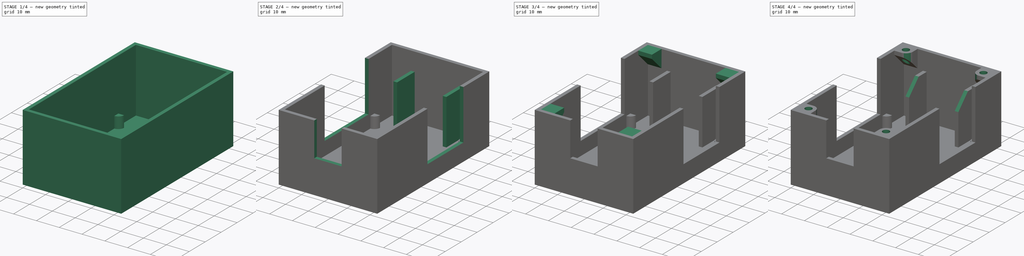
[diagram: build sequence overview — one tinted view per stage of 4, left to right]
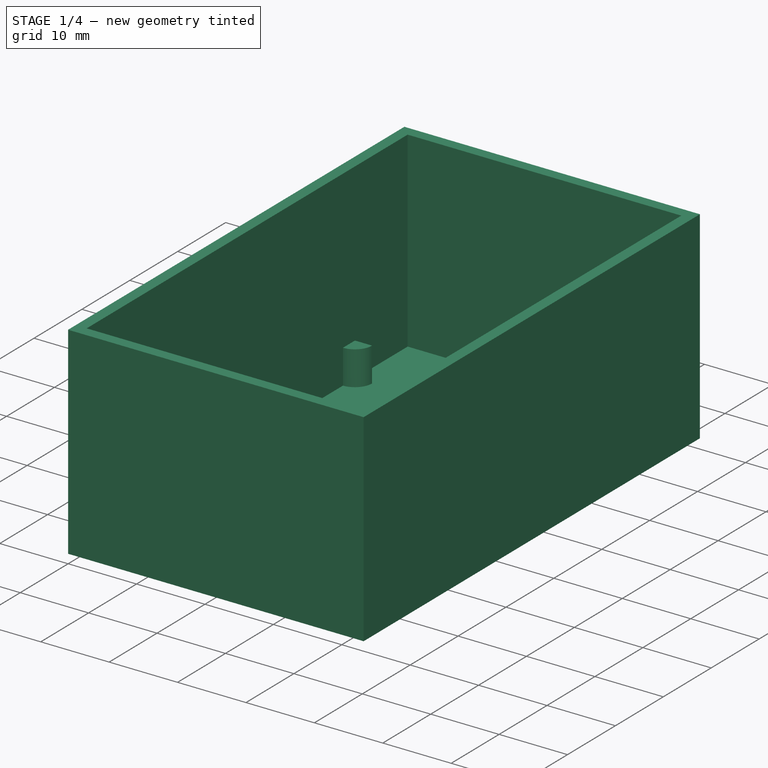
[diagram: stage 1 of 4 — iso view after this stage's code; geometry added in this stage tinted green]
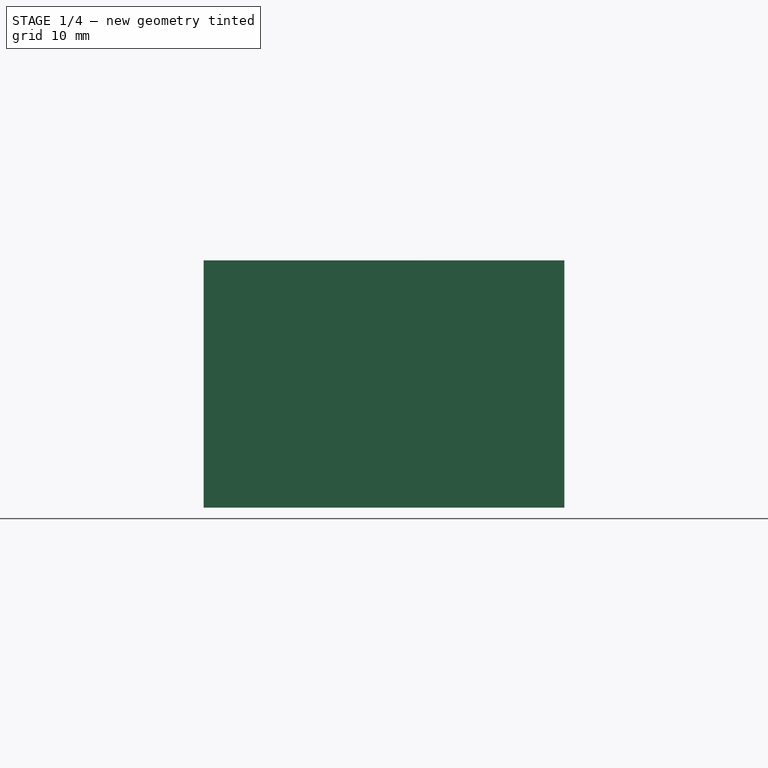
[diagram: stage 1 of 4 — front view after this stage's code; geometry added in this stage tinted green]
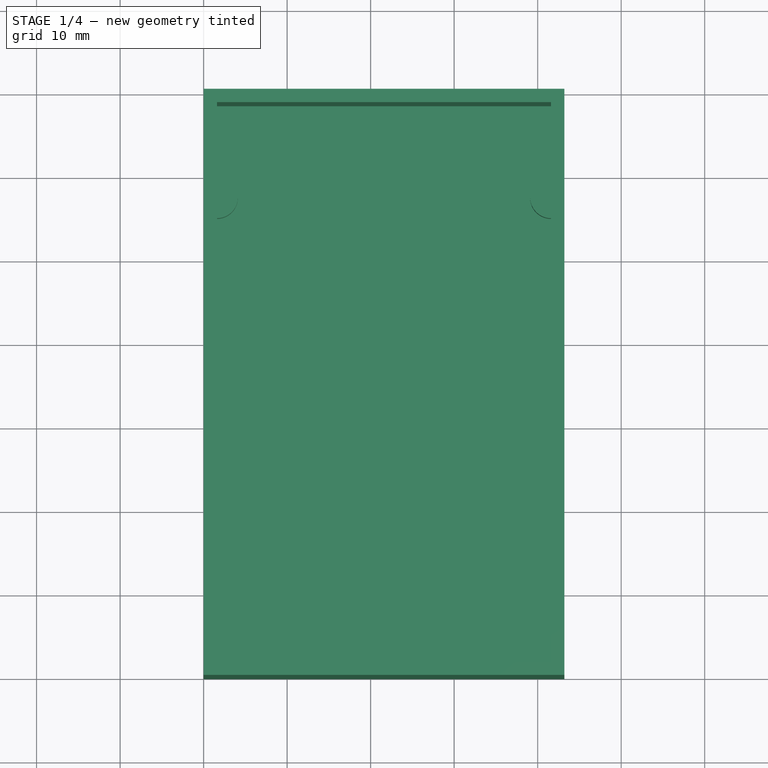
[diagram: stage 1 of 4 — top view after this stage's code; geometry added in this stage tinted green]
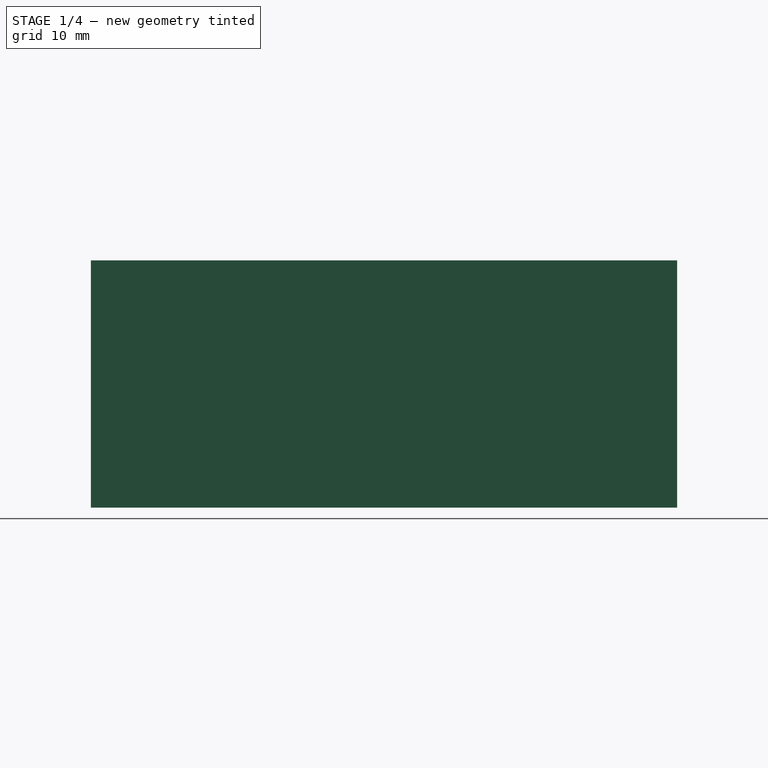
[diagram: stage 1 of 4 — right view after this stage's code; geometry added in this stage tinted green]
FCSTD DOCUMENT  (FreeCAD 0.19R)
Label: case_bottom
License: All rights reserved
LicenseURL: http://en.wikipedia.org/wiki/All_rights_reserved
objects: Sketcher::SketchObject×8, PartDesign::Pad×5, PartDesign::Pocket×3, PartDesign::Chamfer×2, PartDesign::Fillet×1, PartDesign::Body×1
note: 31 computed .brp shape members not serialized (recipe doc carries the construction recipe); baked Part::Feature solids carry a one-line shape summary decoded from their .brp

FEATURE [Sketcher::SketchObject] Sketch
  FullyConstrained = true
  MapMode = 5
  Support = -> [XY_Plane]
  sketch-geometry (4):
    g0: LineSegment StartX=0 StartY=0 StartZ=0 EndX=43.2 EndY=0 EndZ=0
    g1: LineSegment StartX=43.2 StartY=0 StartZ=0 EndX=43.2 EndY=70.2 EndZ=0
    g2: LineSegment StartX=43.2 StartY=70.2 StartZ=0 EndX=0 EndY=70.2 EndZ=0
    g3: LineSegment StartX=0 StartY=70.2 StartZ=0 EndX=0 EndY=0 EndZ=0
  constraints (11):
    c: Coincident(g0,g1)
    c: Coincident(g1,g2)
    c: Coincident(g2,g3)
    c: Coincident(g3,g0)
    c: Horizontal(g0)
    c: Horizontal(g2)
    c: Vertical(g1)
    c: Vertical(g3)
    c: Coincident(g0,g-1)
    c: DistanceX(g0,g0) = 43.2
    c: DistanceY(g1,g1) = 70.2
FEATURE [PartDesign::Pad] Pad
  Direction = (1,1,1)
  Length = 1.6
  Length2 = 100
  Profile = -> Sketch
  Type = 0
FEATURE [Sketcher::SketchObject] Sketch001
  FullyConstrained = true
  MapMode = 5
  Placement = pos=(0,0,1.6) rot=(0,0,1;0rad)
  Support = -> [Pad]
  sketch-geometry (8):
    g0: LineSegment StartX=0 StartY=0 StartZ=0 EndX=43.2 EndY=0 EndZ=0
    g1: LineSegment StartX=43.2 StartY=0 StartZ=0 EndX=43.2 EndY=70.2 EndZ=0
    g2: LineSegment StartX=43.2 StartY=70.2 StartZ=0 EndX=0 EndY=70.2 EndZ=0
    g3: LineSegment StartX=0 StartY=70.2 StartZ=0 EndX=0 EndY=0 EndZ=0
    g4: LineSegment StartX=1.6 StartY=1.6 StartZ=0 EndX=41.6 EndY=1.6 EndZ=0
    g5: LineSegment StartX=41.6 StartY=1.6 StartZ=0 EndX=41.6 EndY=68.6 EndZ=0
    g6: LineSegment StartX=41.6 StartY=68.6 StartZ=0 EndX=1.6 EndY=68.6 EndZ=0
    g7: LineSegment StartX=1.6 StartY=68.6 StartZ=0 EndX=1.6 EndY=1.6 EndZ=0
  constraints (23):
    c: Coincident(g0,g1)
    c: Coincident(g1,g2)
    c: Coincident(g2,g3)
    c: Coincident(g3,g0)
    c: Horizontal(g0)
    c: Horizontal(g2)
    c: Vertical(g1)
    c: Vertical(g3)
    c: Coincident(g0,g-1)
    c: Coincident(g4,g5)
    c: Coincident(g5,g6)
    c: Coincident(g6,g7)
    c: Coincident(g7,g4)
    c: Horizontal(g4)
    c: Horizontal(g6)
    c: Vertical(g5)
    c: Vertical(g7)
    c: DistanceX(g4,g4) = 40
    c: DistanceY(g5,g5) = 67
    c: DistanceX(g0,g0) = 43.2
    c: DistanceY(g3,g3) = 70.2
    c: DistanceX(g0,g4) = 1.6
    c: DistanceY(g0,g4) = 1.6
FEATURE [PartDesign::Pad] Pad001
  BaseFeature = -> Pad
  Direction = (1,1,1)
  Length = 28
  Length2 = 100
  Profile = -> Sketch001
  Type = 0
FEATURE [Sketcher::SketchObject] Sketch002
  FullyConstrained = true
  MapMode = 5
  Placement = pos=(0,0,1.6) rot=(0,0,1;0rad)
  Support = -> [Pad001]
  sketch-geometry (12):
    g0: ArcOfCircle CenterX=1.6 CenterY=1.6 CenterZ=0 NormalX=0 NormalY=0 NormalZ=1 AngleXU=0 Radius=2.5 StartAngle=0 EndAngle=1.5708
    g1: ArcOfCircle CenterX=41.6 CenterY=1.6 CenterZ=0 NormalX=0 NormalY=0 NormalZ=1 AngleXU=0 Radius=2.5 StartAngle=1.5708 EndAngle=3.14159
    g2: ArcOfCircle CenterX=1.6 CenterY=57.6 CenterZ=0 NormalX=0 NormalY=0 NormalZ=1 AngleXU=0 Radius=2.5 StartAngle=4.71239 EndAngle=6.28319
    g3: ArcOfCircle CenterX=41.6 CenterY=57.6 CenterZ=0 NormalX=0 NormalY=0 NormalZ=1 AngleXU=0 Radius=2.5 StartAngle=3.14159 EndAngle=4.71239
    g4: LineSegment StartX=4.1 StartY=57.6 StartZ=0 EndX=1.6 EndY=57.6 EndZ=0
    g5: LineSegment StartX=1.6 StartY=55.1 StartZ=0 EndX=1.6 EndY=57.6 EndZ=0
    g6: LineSegment StartX=39.1 StartY=57.6 StartZ=0 EndX=41.6 EndY=57.6 EndZ=0
    g7: LineSegment StartX=41.6 StartY=55.1 StartZ=0 EndX=41.6 EndY=57.6 EndZ=0
    g8: LineSegment StartX=41.6 StartY=4.1 StartZ=0 EndX=41.6 EndY=1.6 EndZ=0
    g9: LineSegment StartX=41.6 StartY=1.6 StartZ=0 EndX=39.1 EndY=1.6 EndZ=0
    g10: LineSegment StartX=4.1 StartY=1.6 StartZ=0 EndX=1.6 EndY=1.6 EndZ=0
    g11: LineSegment StartX=1.6 StartY=4.1 StartZ=0 EndX=1.6 EndY=1.6 EndZ=0
  constraints (36):
    c: DistanceX(g-1,g0) = 1.6
    c: DistanceY(g-1,g0) = 1.6
    c: DistanceX(g0,g1) = 40
    c: DistanceY(g0,g2) = 56
    c: DistanceY(g3,g2) = 0
    c: DistanceX(g0,g2) = 0
    c: DistanceY(g1,g0) = 0
    c: DistanceX(g3,g1) = 0
    c: Equal(g0,g1)
    c: Equal(g1,g3)
    c: Equal(g3,g2)
    c: Diameter(g1) = 5
    c: Coincident(g4,g2)
    c: Coincident(g4,g2)
    c: Coincident(g5,g2)
    c: Coincident(g5,g2)
    c: Coincident(g6,g3)
    c: Coincident(g6,g3)
    c: Coincident(g7,g3)
    c: Coincident(g7,g3)
    c: Coincident(g8,g1)
    c: Coincident(g8,g1)
    c: Coincident(g9,g1)
    c: Coincident(g9,g1)
    c: Horizontal(g9)
    c: Coincident(g10,g0)
    c: Coincident(g10,g0)
    c: Horizontal(g10)
    c: Coincident(g11,g0)
    c: Coincident(g11,g0)
    c: Vertical(g11)
    c: Vertical(g8)
    c: Horizontal(g4)
    c: Horizontal(g6)
    c: Vertical(g7)
    c: Vertical(g5)
FEATURE [PartDesign::Pad] Pad002
  BaseFeature = -> Pad001
  Direction = (1,1,1)
  Length = 5
  Length2 = 100
  Profile = -> Sketch002
  Type = 0
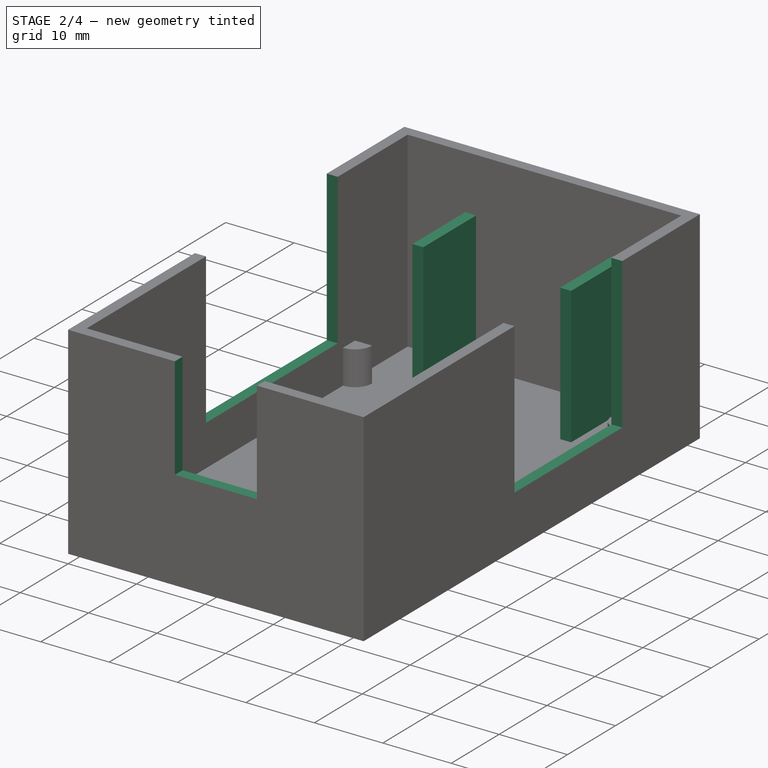
[diagram: stage 2 of 4 — iso view after this stage's code; geometry added in this stage tinted green]
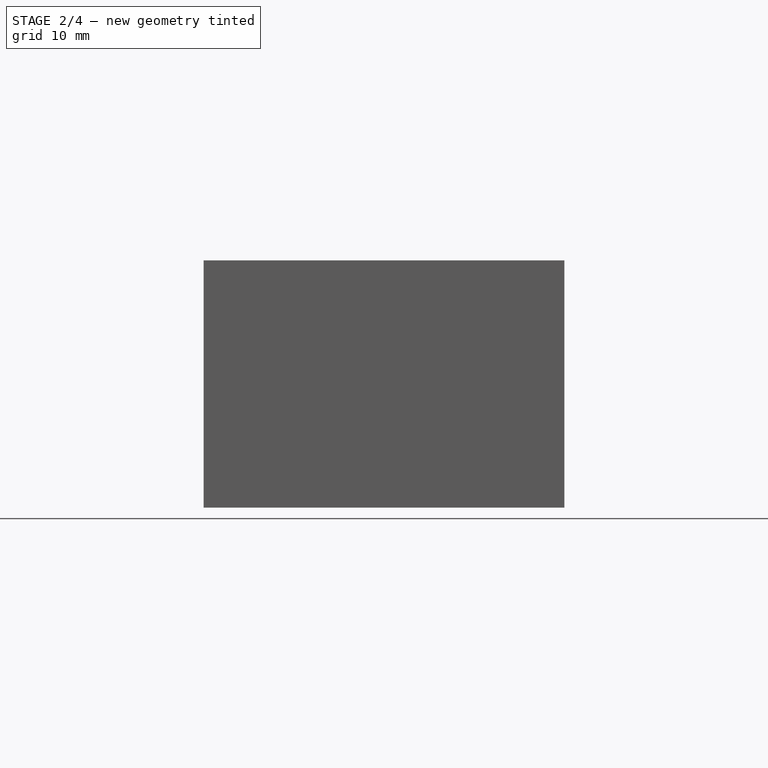
[diagram: stage 2 of 4 — front view after this stage's code; geometry added in this stage tinted green]
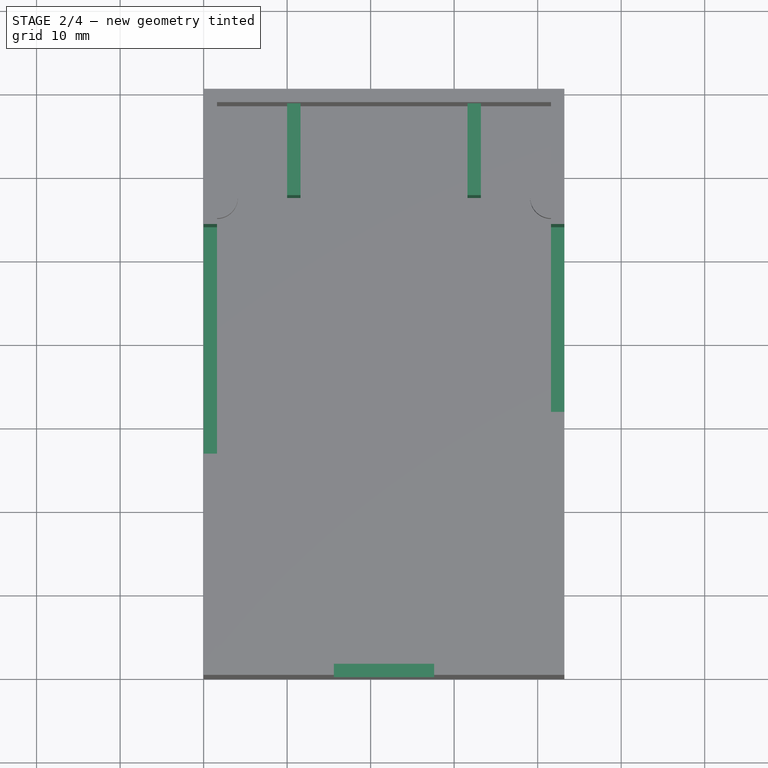
[diagram: stage 2 of 4 — top view after this stage's code; geometry added in this stage tinted green]
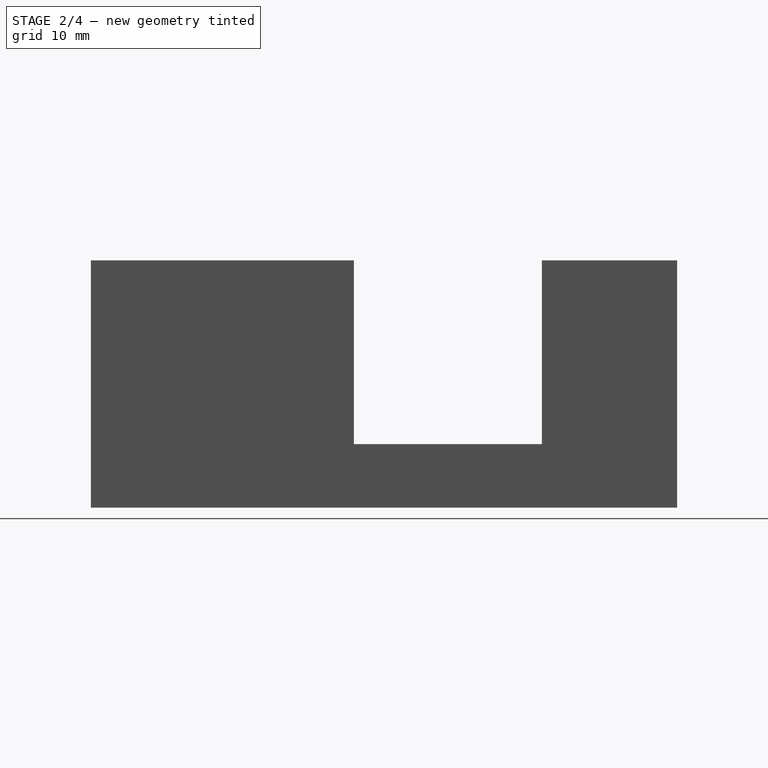
[diagram: stage 2 of 4 — right view after this stage's code; geometry added in this stage tinted green]
FEATURE [Sketcher::SketchObject] Sketch003
  FullyConstrained = true
  MapMode = 5
  Placement = pos=(0,0,29.6) rot=(0,0,1;0rad)
  Support = -> [Pad002]
  sketch-geometry (8):
    g0: LineSegment StartX=0 StartY=54 StartZ=0 EndX=1.6 EndY=54 EndZ=0
    g1: LineSegment StartX=1.6 StartY=54 StartZ=0 EndX=1.6 EndY=26.5 EndZ=0
    g2: LineSegment StartX=1.6 StartY=26.5 StartZ=0 EndX=0 EndY=26.5 EndZ=0
    g3: LineSegment StartX=0 StartY=26.5 StartZ=0 EndX=0 EndY=54 EndZ=0
    g4: LineSegment StartX=41.6 StartY=54 StartZ=0 EndX=43.2 EndY=54 EndZ=0
    g5: LineSegment StartX=43.2 StartY=54 StartZ=0 EndX=43.2 EndY=31.5 EndZ=0
    g6: LineSegment StartX=43.2 StartY=31.5 StartZ=0 EndX=41.6 EndY=31.5 EndZ=0
    g7: LineSegment StartX=41.6 StartY=31.5 StartZ=0 EndX=41.6 EndY=54 EndZ=0
  constraints (24):
    c: Coincident(g0,g1)
    c: Coincident(g1,g2)
    c: Coincident(g2,g3)
    c: Coincident(g3,g0)
    c: Horizontal(g0)
    c: Horizontal(g2)
    c: Vertical(g1)
    c: Vertical(g3)
    c: PointOnObject(g0,g-2)
    c: Coincident(g4,g5)
    c: Coincident(g5,g6)
    c: Coincident(g6,g7)
    c: Coincident(g7,g4)
    c: Horizontal(g4)
    c: Horizontal(g6)
    c: Vertical(g5)
    c: Vertical(g7)
    c: DistanceY(g-1,g0) = 54
    c: DistanceY(g-1,g2) = 26.5
    c: DistanceX(g2,g2) = 1.6
    c: DistanceY(g4) = 54
    c: DistanceX(g-1,g4) = 43.2
    c: Equal(g0,g4)
    c: DistanceY(g-1,g5) = 31.5
FEATURE [PartDesign::Pocket] Pocket
  BaseFeature = -> Pad002
  Length = 22
  Length2 = 100
  Profile = -> Sketch003
  Type = 0
FEATURE [Sketcher::SketchObject] Sketch004
  FullyConstrained = true
  MapMode = 5
  Placement = pos=(0,0,1.6) rot=(0,0,1;0rad)
  Support = -> [Pocket]
  sketch-geometry (8):
    g0: LineSegment StartX=10 StartY=68.6 StartZ=0 EndX=11.6 EndY=68.6 EndZ=0
    g1: LineSegment StartX=11.6 StartY=68.6 StartZ=0 EndX=11.6 EndY=57.6 EndZ=0
    g2: LineSegment StartX=11.6 StartY=57.6 StartZ=0 EndX=10 EndY=57.6 EndZ=0
    g3: LineSegment StartX=10 StartY=57.6 StartZ=0 EndX=10 EndY=68.6 EndZ=0
    g4: LineSegment StartX=31.6 StartY=68.6 StartZ=0 EndX=33.2 EndY=68.6 EndZ=0
    g5: LineSegment StartX=33.2 StartY=68.6 StartZ=0 EndX=33.2 EndY=57.6 EndZ=0
    g6: LineSegment StartX=33.2 StartY=57.6 StartZ=0 EndX=31.6 EndY=57.6 EndZ=0
    g7: LineSegment StartX=31.6 StartY=57.6 StartZ=0 EndX=31.6 EndY=68.6 EndZ=0
  constraints (24):
    c: Coincident(g0,g1)
    c: Coincident(g1,g2)
    c: Coincident(g2,g3)
    c: Coincident(g3,g0)
    c: Horizontal(g0)
    c: Horizontal(g2)
    c: Vertical(g1)
    c: Vertical(g3)
    c: Coincident(g4,g5)
    c: Coincident(g5,g6)
    c: Coincident(g6,g7)
    c: Coincident(g7,g4)
    c: Horizontal(g4)
    c: Horizontal(g6)
    c: Vertical(g5)
    c: Vertical(g7)
    c: DistanceX(g2,g2) = 1.6
    c: Equal(g2,g6)
    c: DistanceX(g0,g4) = 20
    c: DistanceY(g-1,g0) = 68.6
    c: DistanceY(g4,g0) = 0
    c: DistanceX(g-1,g0) = 10
    c: DistanceY(g3,g3) = 11
    c: Equal(g7,g3)
FEATURE [PartDesign::Pad] Pad003
  BaseFeature = -> Pocket
  Direction = (1,1,1)
  Length = 20
  Length2 = 100
  Profile = -> Sketch004
  Type = 0
FEATURE [Sketcher::SketchObject] Sketch005
  FullyConstrained = true
  MapMode = 5
  Placement = pos=(0,0,29.6) rot=(0,0,1;0rad)
  Support = -> [Pad003]
  sketch-geometry (4):
    g0: LineSegment StartX=15.6 StartY=1.6 StartZ=0 EndX=27.6 EndY=1.6 EndZ=0
    g1: LineSegment StartX=27.6 StartY=1.6 StartZ=0 EndX=27.6 EndY=0 EndZ=0
    g2: LineSegment StartX=27.6 StartY=0 StartZ=0 EndX=15.6 EndY=0 EndZ=0
    g3: LineSegment StartX=15.6 StartY=0 StartZ=0 EndX=15.6 EndY=1.6 EndZ=0
  constraints (12):
    c: Coincident(g0,g1)
    c: Coincident(g1,g2)
    c: Coincident(g2,g3)
    c: Coincident(g3,g0)
    c: Horizontal(g0)
    c: Horizontal(g2)
    c: Vertical(g1)
    c: Vertical(g3)
    c: PointOnObject(g1,g-1)
    c: DistanceX(g0,g0) = 12
    c: DistanceY(g1,g1) = 1.6
    c: DistanceX(g-1,g2) = 15.6
FEATURE [PartDesign::Pocket] Pocket001
  BaseFeature = -> Pad003
  Length = 15
  Length2 = 100
  Profile = -> Sketch005
  Type = 0
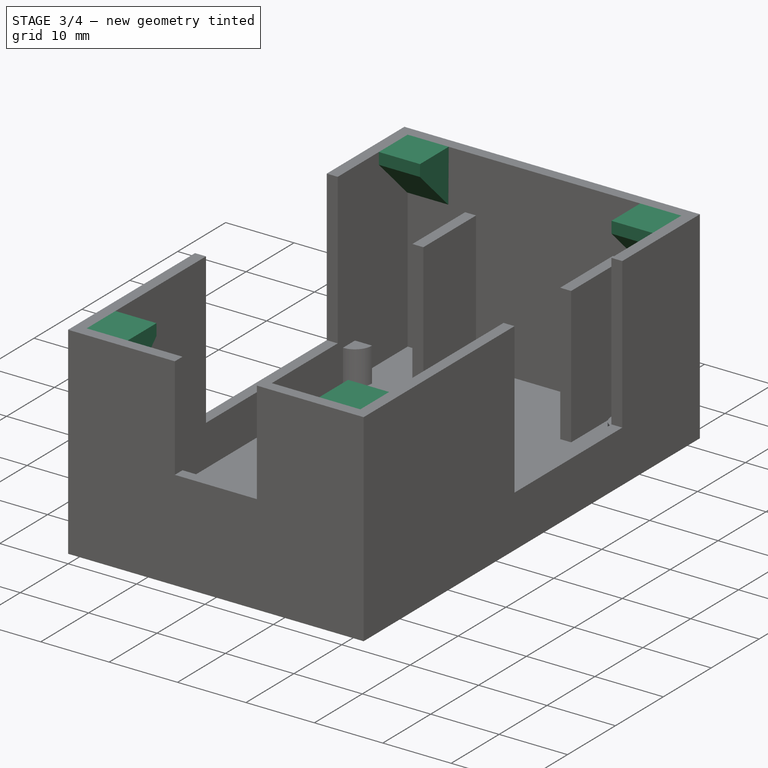
[diagram: stage 3 of 4 — iso view after this stage's code; geometry added in this stage tinted green]
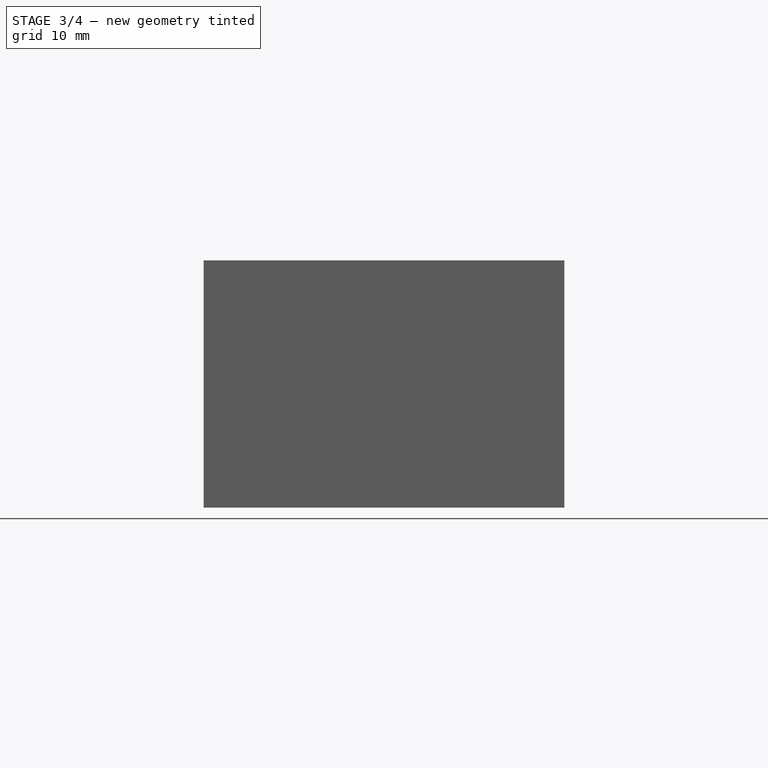
[diagram: stage 3 of 4 — front view after this stage's code; geometry added in this stage tinted green]
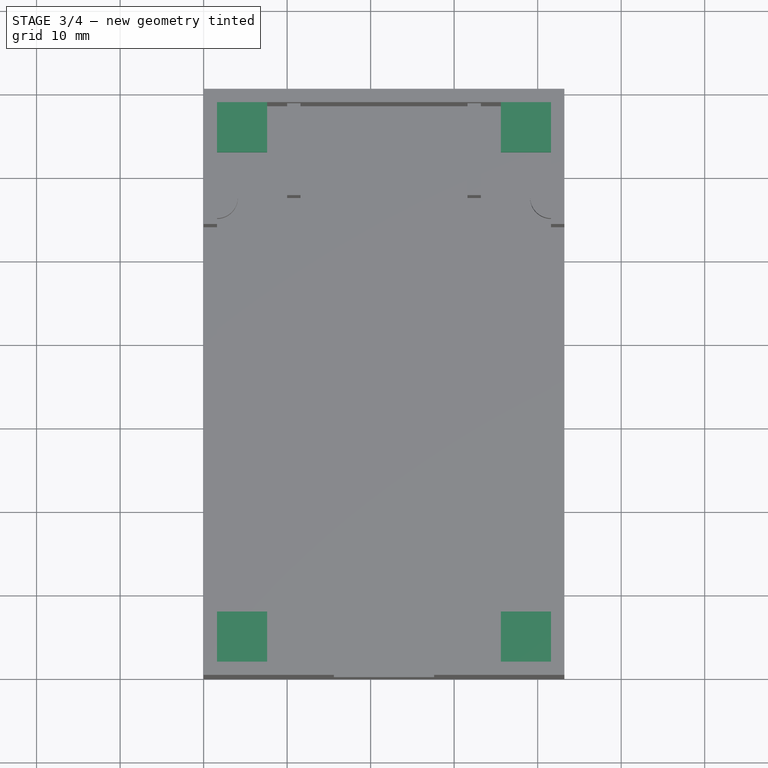
[diagram: stage 3 of 4 — top view after this stage's code; geometry added in this stage tinted green]
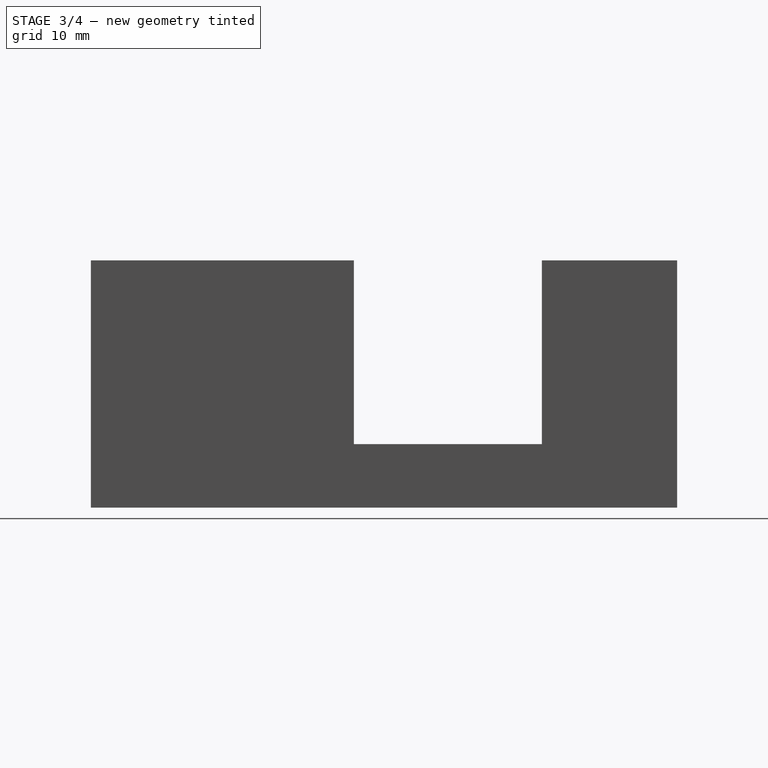
[diagram: stage 3 of 4 — right view after this stage's code; geometry added in this stage tinted green]
FEATURE [Sketcher::SketchObject] Sketch006
  FullyConstrained = true
  MapMode = 5
  Placement = pos=(0,0,29.6) rot=(0,0,1;0rad)
  Support = -> [Pocket001]
  sketch-geometry (16):
    g0: LineSegment StartX=1.6 StartY=1.6 StartZ=0 EndX=7.6 EndY=1.6 EndZ=0
    g1: LineSegment StartX=7.6 StartY=1.6 StartZ=0 EndX=7.6 EndY=7.6 EndZ=0
    g2: LineSegment StartX=7.6 StartY=7.6 StartZ=0 EndX=1.6 EndY=7.6 EndZ=0
    g3: LineSegment StartX=1.6 StartY=7.6 StartZ=0 EndX=1.6 EndY=1.6 EndZ=0
    g4: LineSegment StartX=41.6 StartY=1.6 StartZ=0 EndX=35.6 EndY=1.6 EndZ=0
    g5: LineSegment StartX=35.6 StartY=1.6 StartZ=0 EndX=35.6 EndY=7.6 EndZ=0
    g6: LineSegment StartX=35.6 StartY=7.6 StartZ=0 EndX=41.6 EndY=7.6 EndZ=0
    g7: LineSegment StartX=41.6 StartY=7.6 StartZ=0 EndX=41.6 EndY=1.6 EndZ=0
    g8: LineSegment StartX=1.6 StartY=68.6 StartZ=0 EndX=7.6 EndY=68.6 EndZ=0
    g9: LineSegment StartX=7.6 StartY=68.6 StartZ=0 EndX=7.6 EndY=62.6 EndZ=0
    g10: LineSegment StartX=7.6 StartY=62.6 StartZ=0 EndX=1.6 EndY=62.6 EndZ=0
    g11: LineSegment StartX=1.6 StartY=62.6 StartZ=0 EndX=1.6 EndY=68.6 EndZ=0
    g12: LineSegment StartX=41.6 StartY=68.6 StartZ=0 EndX=35.6 EndY=68.6 EndZ=0
    g13: LineSegment StartX=35.6 StartY=68.6 StartZ=0 EndX=35.6 EndY=62.6 EndZ=0
    g14: LineSegment StartX=35.6 StartY=62.6 StartZ=0 EndX=41.6 EndY=62.6 EndZ=0
    g15: LineSegment StartX=41.6 StartY=62.6 StartZ=0 EndX=41.6 EndY=68.6 EndZ=0
  constraints (48):
    c: Coincident(g0,g1)
    c: Coincident(g1,g2)
    c: Coincident(g2,g3)
    c: Coincident(g3,g0)
    c: Horizontal(g0)
    c: Horizontal(g2)
    c: Vertical(g1)
    c: Vertical(g3)
    c: Coincident(g4,g5)
    c: Coincident(g5,g6)
    c: Coincident(g6,g7)
    c: Coincident(g7,g4)
    c: Horizontal(g4)
    c: Horizontal(g6)
    c: Vertical(g5)
    c: Vertical(g7)
    c: Coincident(g8,g9)
    c: Coincident(g9,g10)
    c: Coincident(g10,g11)
    c: Coincident(g11,g8)
    c: Horizontal(g8)
    c: Horizontal(g10)
    c: Vertical(g9)
    c: Vertical(g11)
    c: Coincident(g12,g13)
    c: Coincident(g13,g14)
    c: Coincident(g14,g15)
    c: Coincident(g15,g12)
    c: Horizontal(g12)
    c: Horizontal(g14)
    c: Vertical(g13)
    c: Vertical(g15)
    c: Equal(g2,g1)
    c: Equal(g1,g5)
    c: Equal(g5,g6)
    c: Equal(g6,g14)
    c: Equal(g14,g13)
    c: Equal(g13,g9)
    c: Equal(g9,g10)
    c: DistanceX(g-1,g0) = 1.6
    c: DistanceY(g-1,g0) = 1.6
    c: DistanceY(g0,g4) = 0
    c: DistanceX(g0,g4) = 40
    c: DistanceY(g4,g12) = 67
    c: DistanceX(g14,g6) = 0
    c: DistanceY(g8,g12) = 0
    c: DistanceX(g10,g2) = 0
    c: DistanceY(g1,g1) = 6
FEATURE [PartDesign::Pad] Pad004
  BaseFeature = -> Pocket001
  Direction = (1,1,1)
  Length = 7.6
  Length2 = 100
  Profile = -> Sketch006
  Reversed = true
  Type = 0
FEATURE [Sketcher::SketchObject] Sketch007
  FullyConstrained = true
  MapMode = 5
  Placement = pos=(0,0,29.6) rot=(0,0,1;0rad)
  sketch-geometry (4):
    g0: Circle CenterX=4.6 CenterY=4.6 CenterZ=0 NormalX=0 NormalY=0 NormalZ=1 AngleXU=0 Radius=1.5
    g1: Circle CenterX=38.6 CenterY=4.6 CenterZ=0 NormalX=0 NormalY=0 NormalZ=1 AngleXU=0 Radius=1.5
    g2: Circle CenterX=4.6 CenterY=65.6 CenterZ=0 NormalX=0 NormalY=0 NormalZ=1 AngleXU=0 Radius=1.5
    g3: Circle CenterX=38.6 CenterY=65.6 CenterZ=0 NormalX=0 NormalY=0 NormalZ=1 AngleXU=0 Radius=1.5
  constraints (12):
    c: Equal(g0,g1)
    c: Equal(g1,g3)
    c: Equal(g3,g2)
    c: Diameter(g3) = 3
    c: DistanceX(g-1,g0) = 4.6
    c: DistanceY(g-1,g0) = 4.6
    c: DistanceY(g1,g0) = 0
    c: DistanceX(g0,g1) = 34
    c: DistanceX(g1,g3) = 0
    c: DistanceY(g1,g3) = 61
    c: DistanceY(g3,g2) = 0
    c: DistanceX(g2,g0) = 0
FEATURE [PartDesign::Chamfer] Chamfer
  Angle = 45
  Base = -> Pad004 [Edge149,Edge155,Edge139,Edge143]
  BaseFeature = -> Pad004
  ChamferType = 0
  FlipDirection = false
  Size = 5.9
  Size2 = 1
  SupportTransform = false
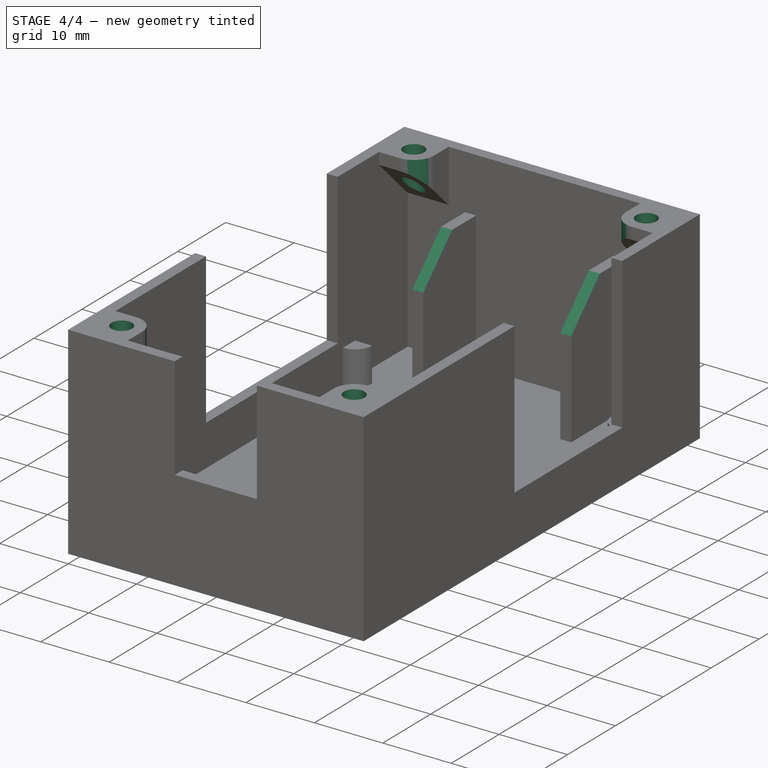
[diagram: stage 4 of 4 — iso view after this stage's code; geometry added in this stage tinted green]
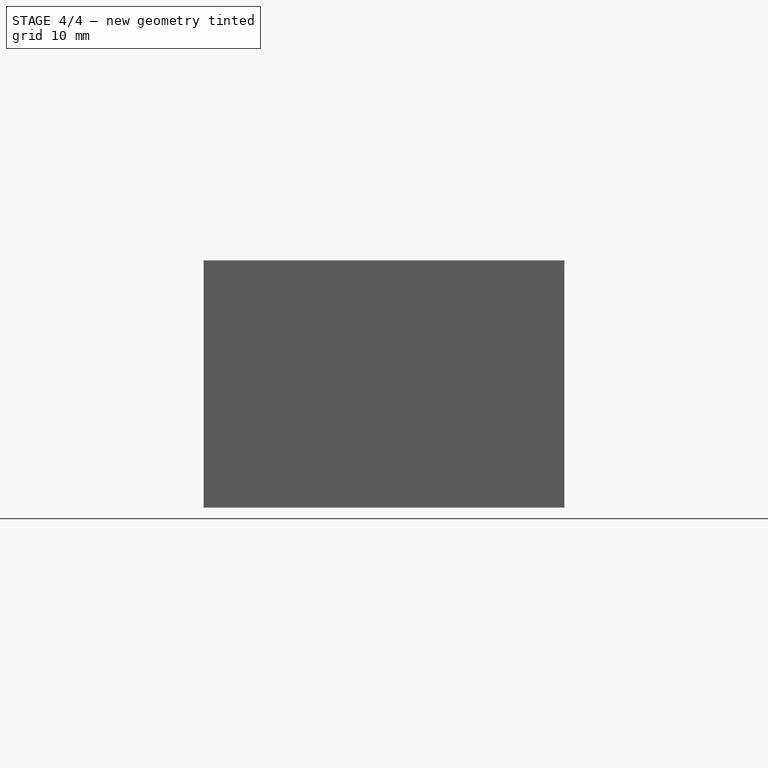
[diagram: stage 4 of 4 — front view after this stage's code; geometry added in this stage tinted green]
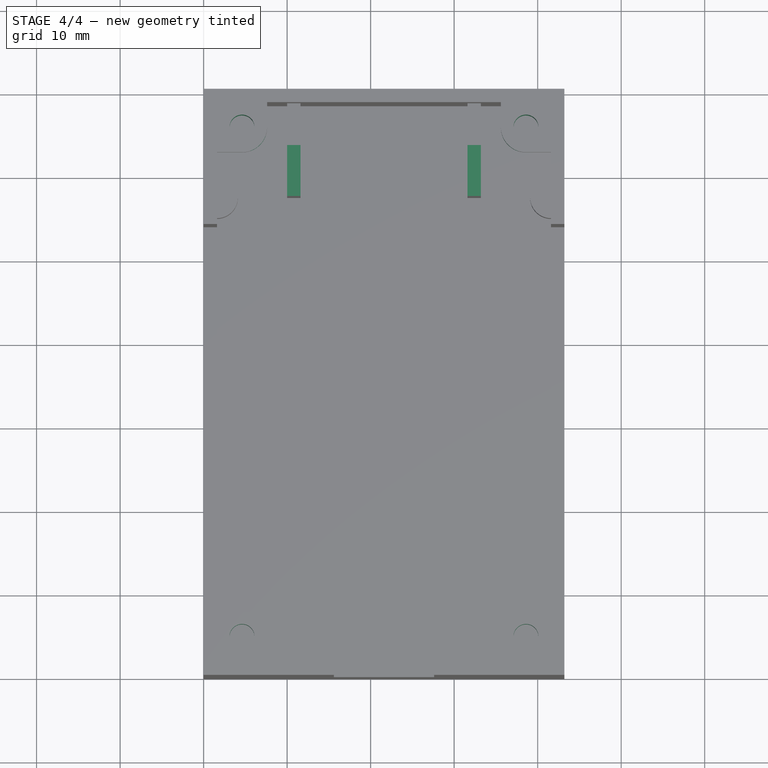
[diagram: stage 4 of 4 — top view after this stage's code; geometry added in this stage tinted green]
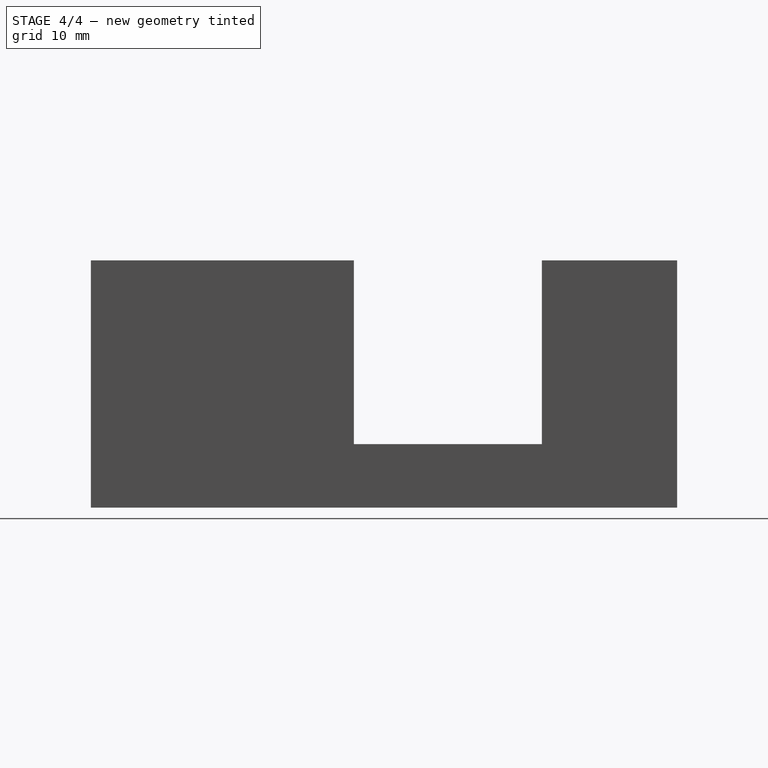
[diagram: stage 4 of 4 — right view after this stage's code; geometry added in this stage tinted green]
FEATURE [PartDesign::Pocket] Pocket002
  BaseFeature = -> Chamfer
  Length = 10
  Length2 = 100
  Profile = -> Sketch007
  Type = 0
FEATURE [PartDesign::Fillet] Fillet
  Base = -> Pocket002 [Edge134,Edge41,Edge169,Edge85]
  BaseFeature = -> Pocket002
  Radius = 3
  SupportTransform = false
FEATURE [PartDesign::Chamfer] Chamfer001
  Angle = 45
  Base = -> Fillet [Edge118,Edge113]
  BaseFeature = -> Fillet
  ChamferType = 0
  FlipDirection = false
  Size = 6
  Size2 = 1
  SupportTransform = false
FEATURE [PartDesign::Body] Body
  Group = -> [Sketch,Pad,Sketch001,Pad001,Sketch002,Pad002,Sketch003,Pocket,Sketch004,Pad003,Sketch005,Pocket001,Sketch006,Pad004,Sketch007,Chamfer,Pocket002,Fillet,Chamfer001]
  Origin = -> Origin
  Tip = -> Chamfer001
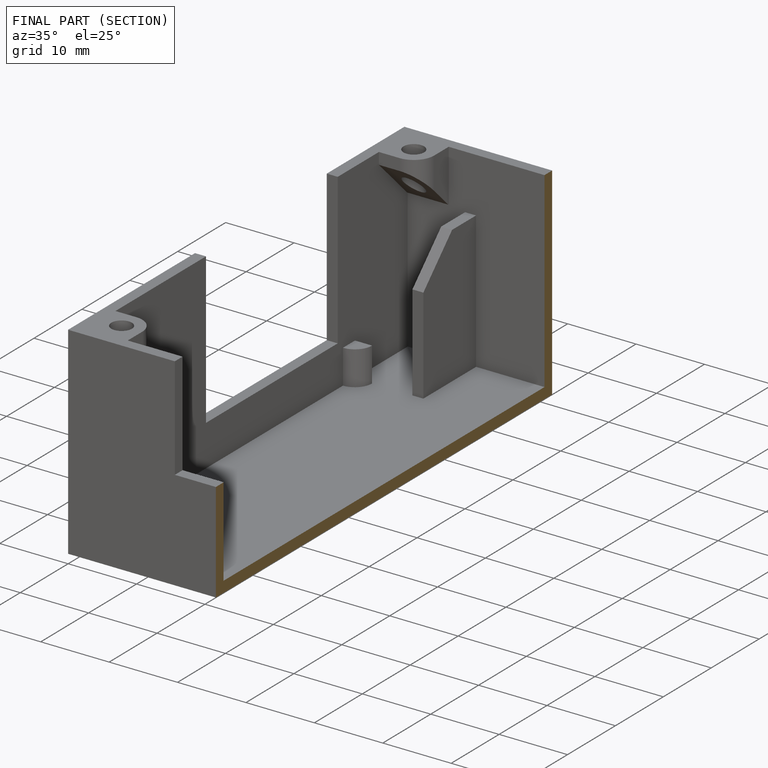
[diagram: finished part — half-section view (interior)]
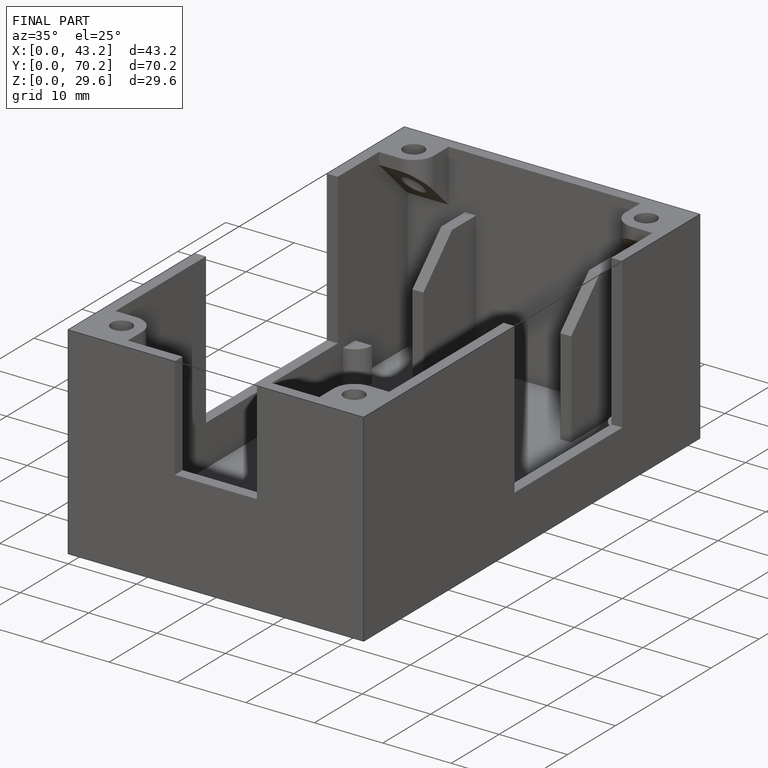
[diagram: finished part — iso view with bounding-box wireframe]
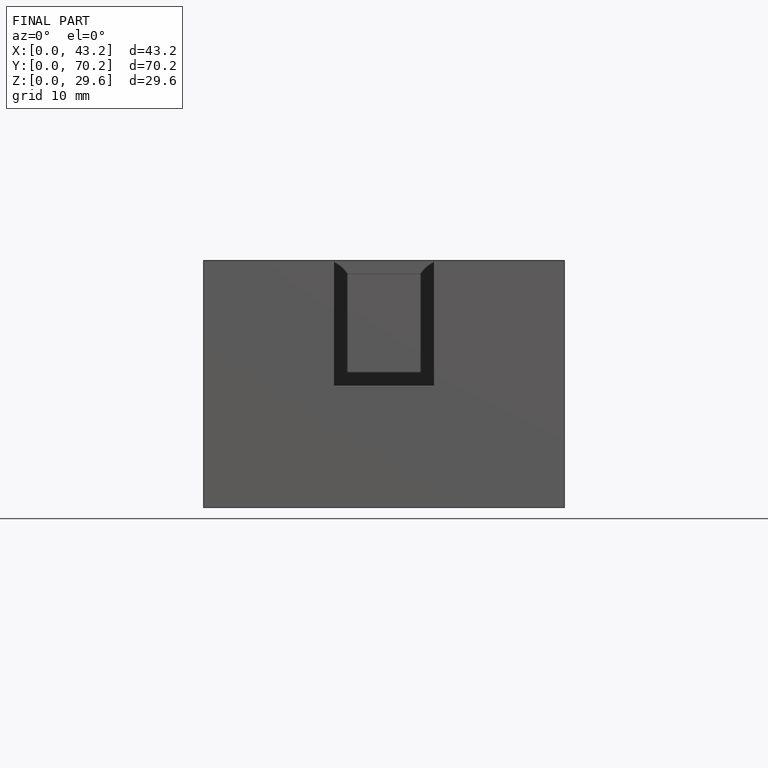
[diagram: finished part — front view with bounding-box wireframe]
